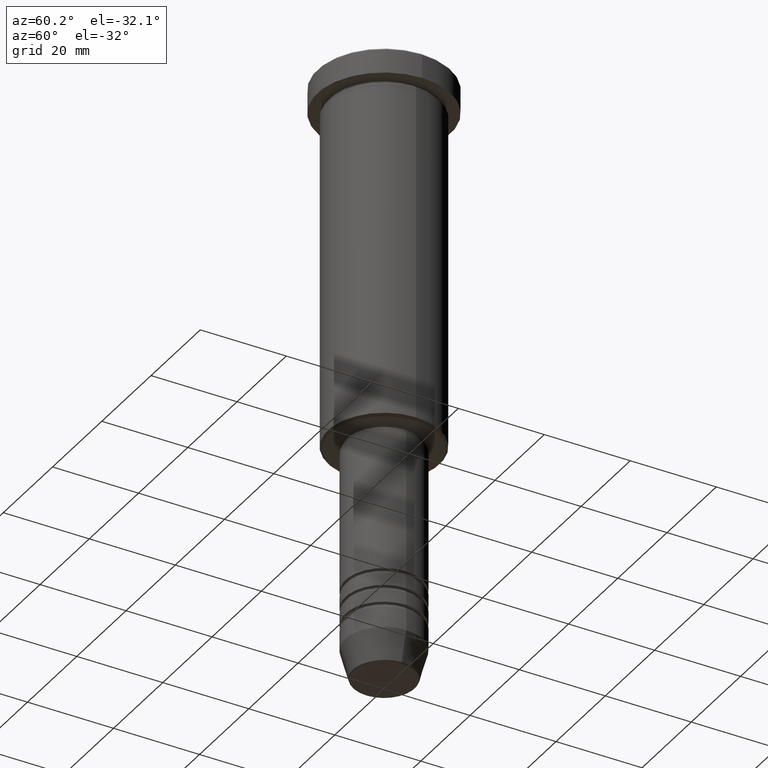
[diagram: clean part render]
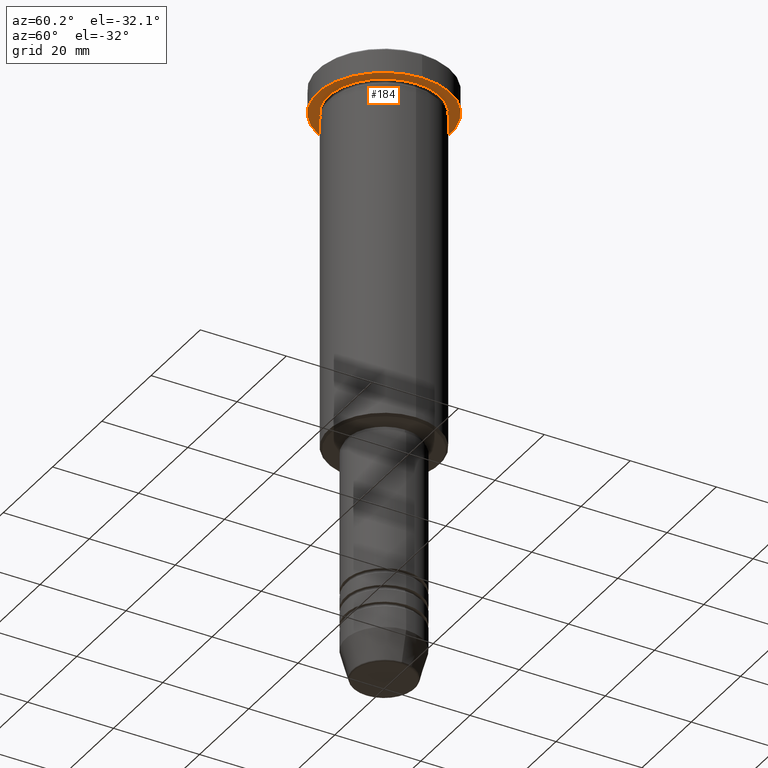
[diagram: same view with one face highlighted and labeled with its STEP entity id]
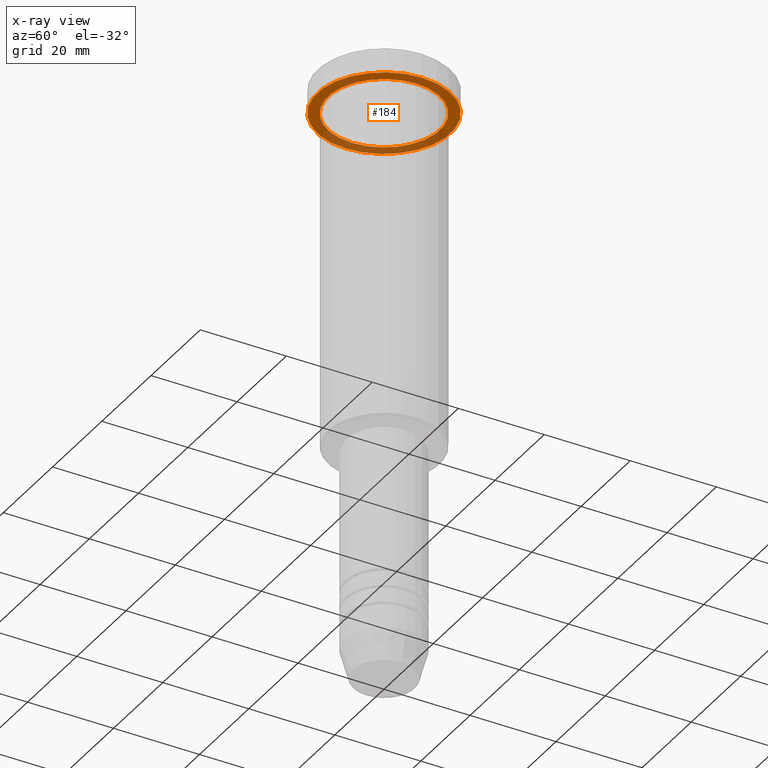
[diagram: x-ray of the same camera — body ghosted, the highlighted face saturated]
A machine part, auxiliary view. The second image highlights one B-rep face of the part: STEP entity #184.
The next image is the same camera in x-ray: the body ghosted, the highlighted face saturated — about 32% of this face is hidden behind the body in this view.
In plain terms, the highlighted planar face has unit normal (0, 0, -1).
Its self-contained STEP definition (entity closure, byte-faithful):
#74 = DIRECTION ( 'NONE',  ( 1.000000000000000000, 0.000000000000000000, 0.000000000000000000 ) ) ;
#78 = CIRCLE ( 'NONE', #995, 13.00000000000000000 ) ;
#80 = AXIS2_PLACEMENT_3D ( 'NONE', #356, #719, #1085 ) ;
#92 = CARTESIAN_POINT ( 'NONE',  ( 15.50000000000000000, 0.000000000000000000, -5.999999999999995559 ) ) ;
#110 = CARTESIAN_POINT ( 'NONE',  ( 0.000000000000000000, 15.50000000000000000, -5.999999999999995559 ) ) ;
#129 = AXIS2_PLACEMENT_3D ( 'NONE', #893, #259, #74 ) ;
#184 = ADVANCED_FACE ( 'NONE', ( #311, #391 ), #1103, .T. ) ;
#189 = CIRCLE ( 'NONE', #485, 15.50000000000000000 ) ;
#195 = VERTEX_POINT ( 'NONE', #851 ) ;
#259 = DIRECTION ( 'NONE',  ( -0.000000000000000000, -0.000000000000000000, 1.000000000000000000 ) ) ;
#311 = FACE_BOUND ( 'NONE', #1099, .T. ) ;
#316 = VERTEX_POINT ( 'NONE', #950 ) ;
#319 = DIRECTION ( 'NONE',  ( -0.000000000000000000, -0.000000000000000000, 1.000000000000000000 ) ) ;
#354 = DIRECTION ( 'NONE',  ( 1.000000000000000000, 0.000000000000000000, 0.000000000000000000 ) ) ;
#356 = CARTESIAN_POINT ( 'NONE',  ( 0.000000000000000000, 0.000000000000000000, -5.999999999999995559 ) ) ;
#385 = EDGE_CURVE ( 'NONE', #195, #977, #78, .T. ) ;
#391 = FACE_OUTER_BOUND ( 'NONE', #772, .T. ) ;
#485 = AXIS2_PLACEMENT_3D ( 'NONE', #1009, #914, #354 ) ;
#580 = EDGE_CURVE ( 'NONE', #977, #195, #758, .T. ) ;
#719 = DIRECTION ( 'NONE',  ( -0.000000000000000000, -0.000000000000000000, 1.000000000000000000 ) ) ;
#723 = ORIENTED_EDGE ( 'NONE', *, *, #945, .F. ) ;
#736 = CARTESIAN_POINT ( 'NONE',  ( 13.00000000000000000, 1.592040838891559095E-15, -5.999999999999994671 ) ) ;
#758 = CIRCLE ( 'NONE', #80, 13.00000000000000000 ) ;
#772 = EDGE_LOOP ( 'NONE', ( #723, #968 ) ) ;
#787 = CARTESIAN_POINT ( 'NONE',  ( 0.000000000000000000, 0.000000000000000000, -5.999999999999995559 ) ) ;
#851 = CARTESIAN_POINT ( 'NONE',  ( -13.00000000000000000, 0.000000000000000000, -5.999999999999994671 ) ) ;
#856 = DIRECTION ( 'NONE',  ( -1.000000000000000000, 0.000000000000000000, 0.000000000000000000 ) ) ;
#863 = EDGE_CURVE ( 'NONE', #316, #903, #1161, .T. ) ;
#893 = CARTESIAN_POINT ( 'NONE',  ( 0.000000000000000000, 0.000000000000000000, -5.999999999999995559 ) ) ;
#897 = AXIS2_PLACEMENT_3D ( 'NONE', #110, #1019, #1011 ) ;
#903 = VERTEX_POINT ( 'NONE', #92 ) ;
#914 = DIRECTION ( 'NONE',  ( -0.000000000000000000, -0.000000000000000000, 1.000000000000000000 ) ) ;
#945 = EDGE_CURVE ( 'NONE', #903, #316, #189, .T. ) ;
#947 = ORIENTED_EDGE ( 'NONE', *, *, #580, .T. ) ;
#950 = CARTESIAN_POINT ( 'NONE',  ( -15.50000000000000000, 1.898202538678397557E-15, -5.999999999999995559 ) ) ;
#968 = ORIENTED_EDGE ( 'NONE', *, *, #863, .F. ) ;
#977 = VERTEX_POINT ( 'NONE', #736 ) ;
#989 = ORIENTED_EDGE ( 'NONE', *, *, #385, .T. ) ;
#995 = AXIS2_PLACEMENT_3D ( 'NONE', #787, #319, #856 ) ;
#1009 = CARTESIAN_POINT ( 'NONE',  ( 0.000000000000000000, 0.000000000000000000, -5.999999999999995559 ) ) ;
#1011 = DIRECTION ( 'NONE',  ( -1.000000000000000000, 0.000000000000000000, -0.000000000000000000 ) ) ;
#1019 = DIRECTION ( 'NONE',  ( 0.000000000000000000, 0.000000000000000000, -1.000000000000000000 ) ) ;
#1085 = DIRECTION ( 'NONE',  ( -1.000000000000000000, 0.000000000000000000, 0.000000000000000000 ) ) ;
#1099 = EDGE_LOOP ( 'NONE', ( #989, #947 ) ) ;
#1103 = PLANE ( 'NONE',  #897 ) ;
#1161 = CIRCLE ( 'NONE', #129, 15.50000000000000000 ) ;